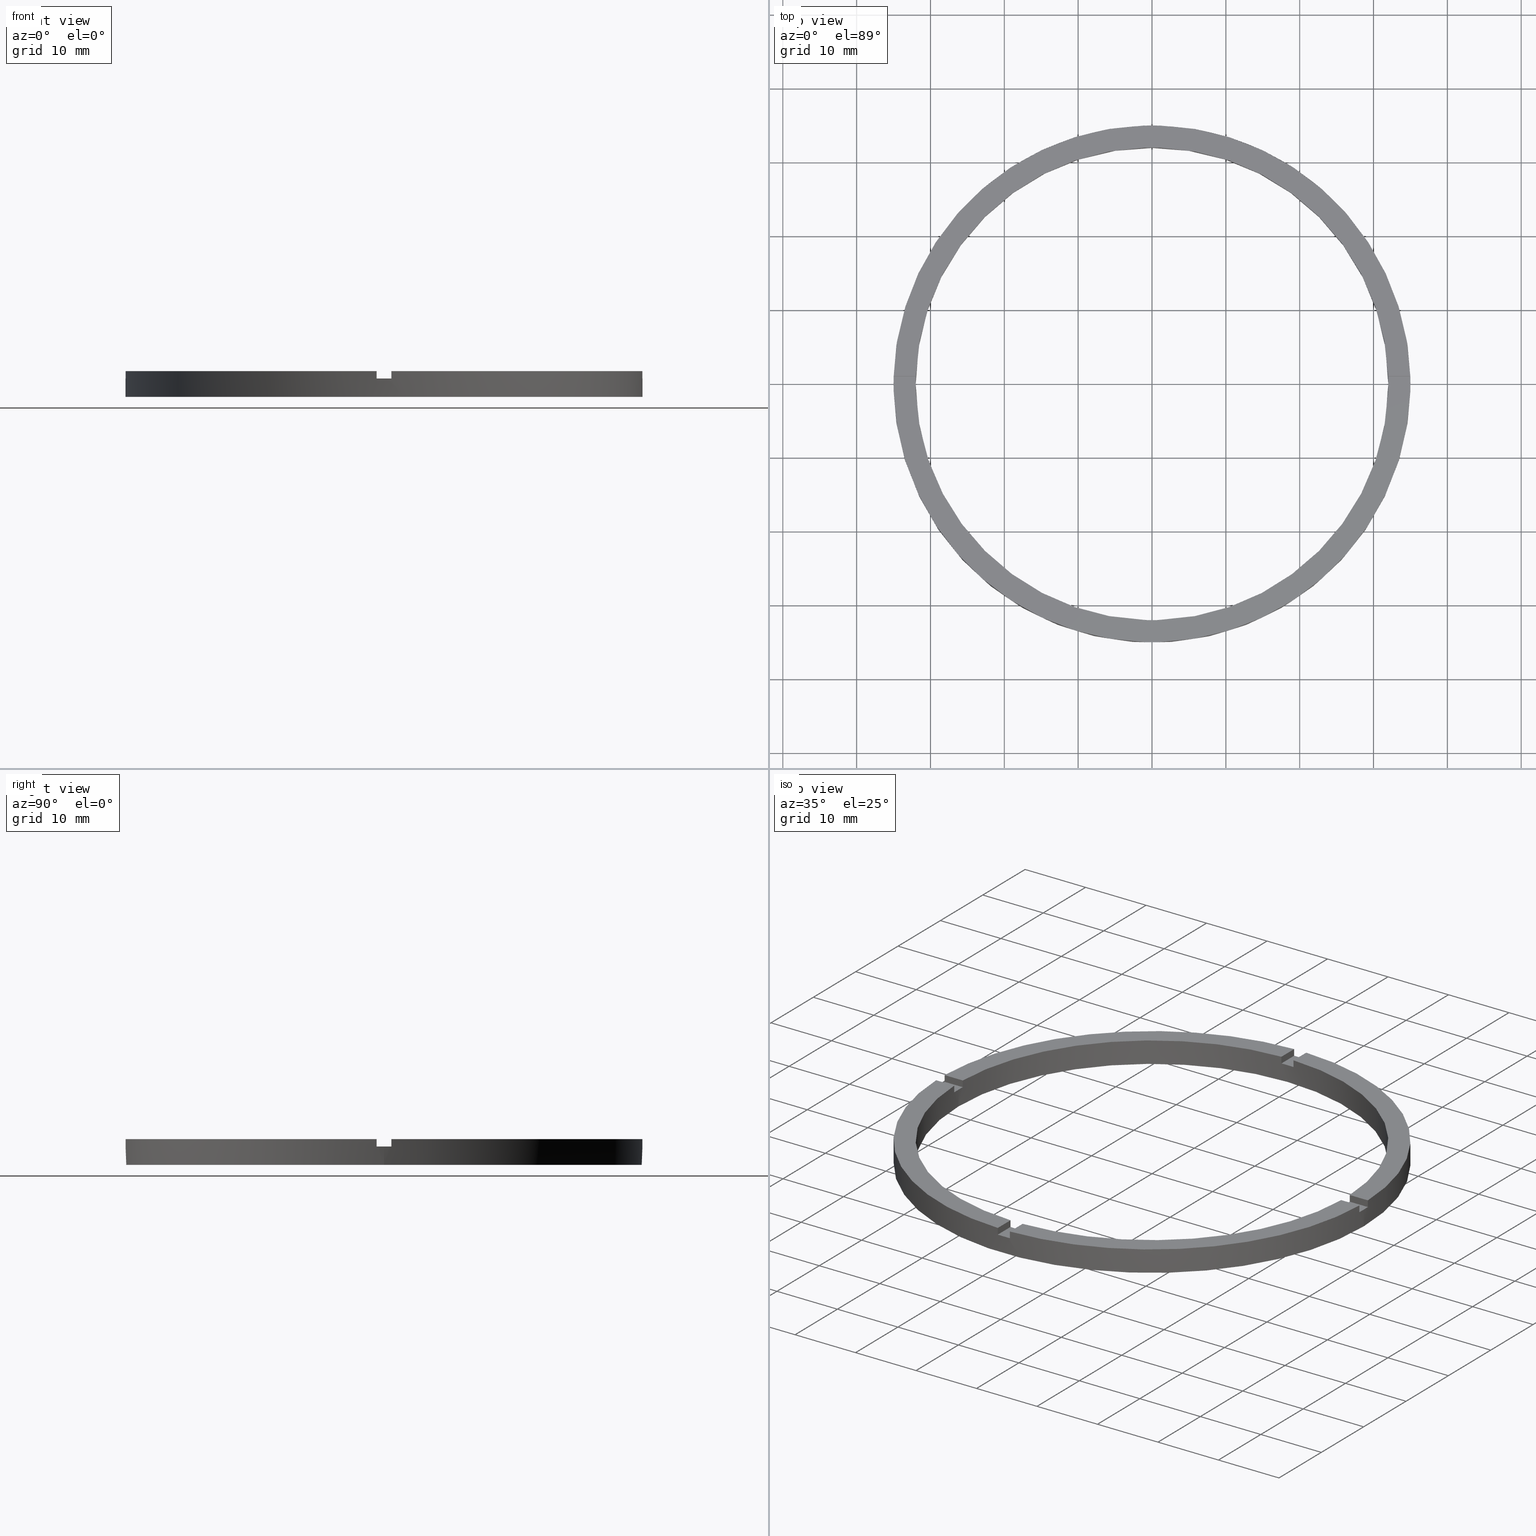
[diagram: canonical four-view strip — front | top / right | iso, engineering-drawing reading convention]
A machine part, canonical four-view strip (front | top / right | iso — engineering-drawing reading convention). The complete STEP part file that produces these views, byte-faithful:
ISO-10303-21;
HEADER;
FILE_DESCRIPTION (( 'STEP AP203' ),
    '1' );
FILE_NAME ('514145.step',
    '2024-12-26T02:41:53',
    ( 'MSI' ),
    ( '' ),
    'SwSTEP 2.0',
    'SolidWorks 2020',
    '' );
FILE_SCHEMA (( 'CONFIG_CONTROL_DESIGN' ));
ENDSEC;

DATA;
#1 = EDGE_LOOP ( 'NONE', ( #15, #634, #408, #542 ) ) ;
#2 = CARTESIAN_POINT ( 'NONE',  ( 0.9999999999999751310, 25.00000000000000711, 2.500000000000000000 ) ) ;
#3 = EDGE_CURVE ( 'NONE', #108, #667, #706, .T. ) ;
#4 = ORIENTED_EDGE ( 'NONE', *, *, #701, .T. ) ;
#5 = ORIENTED_EDGE ( 'NONE', *, *, #680, .T. ) ;
#6 = LINE ( 'NONE', #776, #533 ) ;
#7 = EDGE_LOOP ( 'NONE', ( #168, #270, #66, #73 ) ) ;
#8 = DIRECTION ( 'NONE',  ( 1.000000000000000000, 0.000000000000000000, 0.000000000000000000 ) ) ;
#9 = ORIENTED_EDGE ( 'NONE', *, *, #312, .T. ) ;
#10 = VERTEX_POINT ( 'NONE', #442 ) ;
#11 = CC_DESIGN_DATE_AND_TIME_ASSIGNMENT ( #223, #632, ( #474 ) ) ;
#12 = ORIENTED_EDGE ( 'NONE', *, *, #178, .T. ) ;
#13 = DIRECTION ( 'NONE',  ( 1.000000000000000000, 0.000000000000000000, -0.000000000000000000 ) ) ;
#14 = LINE ( 'NONE', #297, #308 ) ;
#15 = ORIENTED_EDGE ( 'NONE', *, *, #178, .F. ) ;
#16 = EDGE_CURVE ( 'NONE', #268, #338, #696, .T. ) ;
#17 = CARTESIAN_POINT ( 'NONE',  ( 34.98571136907181511, 0.9999999999998421263, 3.500000000000000000 ) ) ;
#18 = ADVANCED_FACE ( 'NONE', ( #187 ), #773, .F. ) ;
#19 = ORIENTED_EDGE ( 'NONE', *, *, #525, .T. ) ;
#20 = ORIENTED_EDGE ( 'NONE', *, *, #281, .T. ) ;
#21 = DIRECTION ( 'NONE',  ( 1.000000000000000000, 0.000000000000000000, 0.000000000000000000 ) ) ;
#22 = FACE_OUTER_BOUND ( 'NONE', #140, .T. ) ;
#23 = LINE ( 'NONE', #144, #522 ) ;
#24 = ADVANCED_FACE ( 'NONE', ( #430 ), #33, .T. ) ;
#25 = AXIS2_PLACEMENT_3D ( 'NONE', #763, #571, #75 ) ;
#26 = CARTESIAN_POINT ( 'NONE',  ( 34.98571136907180090, -1.000000000000157874, 2.500000000000000000 ) ) ;
#27 = EDGE_CURVE ( 'NONE', #182, #147, #191, .T. ) ;
#28 = VECTOR ( 'NONE', #254, 1000.000000000000000 ) ;
#29 = CARTESIAN_POINT ( 'NONE',  ( -31.98437118343894880, -1.000000000000026201, 3.500000000000000000 ) ) ;
#30 = DIRECTION ( 'NONE',  ( 0.000000000000000000, 0.000000000000000000, 1.000000000000000000 ) ) ;
#31 = APPROVAL ( #285, 'δָ��' ) ;
#32 = AXIS2_PLACEMENT_3D ( 'NONE', #642, #211, #220 ) ;
#33 = PLANE ( 'NONE',  #779 ) ;
#34 = DIRECTION ( 'NONE',  ( 0.000000000000000000, 0.000000000000000000, 1.000000000000000000 ) ) ;
#35 = APPLICATION_CONTEXT ( 'configuration controlled 3d designs of mechanical parts and assemblies' ) ;
#36 = AXIS2_PLACEMENT_3D ( 'NONE', #46, #341, #299 ) ;
#37 = CARTESIAN_POINT ( 'NONE',  ( -31.98437118343894880, 0.9999999999999737987, 2.500000000000000000 ) ) ;
#38 = DIRECTION ( 'NONE',  ( -1.000000000000000000, 0.000000000000000000, 0.000000000000000000 ) ) ;
#39 = CIRCLE ( 'NONE', #404, 35.00000000000000711 ) ;
#40 = DIRECTION ( 'NONE',  ( 0.000000000000000000, 0.000000000000000000, 1.000000000000000000 ) ) ;
#41 = AXIS2_PLACEMENT_3D ( 'NONE', #500, #596, #173 ) ;
#42 = CARTESIAN_POINT ( 'NONE',  ( 0.9999999999998391287, -31.98437118343895591, 3.500000000000000000 ) ) ;
#43 = CARTESIAN_POINT ( 'NONE',  ( -1.000000000000024869, 25.00000000000000711, 2.500000000000000000 ) ) ;
#44 = DIRECTION ( 'NONE',  ( -0.000000000000000000, -0.000000000000000000, -1.000000000000000000 ) ) ;
#45 = DIRECTION ( 'NONE',  ( 1.000000000000000000, 0.000000000000000000, 0.000000000000000000 ) ) ;
#46 = CARTESIAN_POINT ( 'NONE',  ( 0.000000000000000000, 0.000000000000000000, 3.500000000000000000 ) ) ;
#47 = AXIS2_PLACEMENT_3D ( 'NONE', #420, #564, #21 ) ;
#48 = DIRECTION ( 'NONE',  ( 0.000000000000000000, 0.000000000000000000, 1.000000000000000000 ) ) ;
#49 = EDGE_CURVE ( 'NONE', #268, #409, #426, .T. ) ;
#50 = CARTESIAN_POINT ( 'NONE',  ( 0.000000000000000000, 0.000000000000000000, 2.500000000000000000 ) ) ;
#51 = DIRECTION ( 'NONE',  ( 1.000000000000000000, 6.505213034913025371E-17, 0.000000000000000000 ) ) ;
#52 = DIRECTION ( 'NONE',  ( 0.000000000000000000, 0.000000000000000000, 1.000000000000000000 ) ) ;
#53 = CARTESIAN_POINT ( 'NONE',  ( 35.00000000000000711, 4.286263797015737285E-15, 2.500000000000000000 ) ) ;
#54 = CARTESIAN_POINT ( 'NONE',  ( 0.000000000000000000, 0.000000000000000000, 3.500000000000000000 ) ) ;
#55 = CC_DESIGN_PERSON_AND_ORGANIZATION_ASSIGNMENT ( #738, #778, ( #607 ) ) ;
#56 = DIRECTION ( 'NONE',  ( 0.000000000000000000, -0.000000000000000000, 1.000000000000000000 ) ) ;
#57 = EDGE_CURVE ( 'NONE', #703, #676, #690, .T. ) ;
#58 = CARTESIAN_POINT ( 'NONE',  ( 0.000000000000000000, 0.000000000000000000, 0.000000000000000000 ) ) ;
#59 = ADVANCED_FACE ( 'NONE', ( #450 ), #586, .T. ) ;
#60 = DIRECTION ( 'NONE',  ( 0.000000000000000000, 0.000000000000000000, 1.000000000000000000 ) ) ;
#61 = EDGE_CURVE ( 'NONE', #449, #409, #166, .T. ) ;
#62 = CC_DESIGN_APPROVAL ( #31, ( #606 ) ) ;
#63 = AXIS2_PLACEMENT_3D ( 'NONE', #96, #163, #496 ) ;
#64 = DIRECTION ( 'NONE',  ( -0.000000000000000000, 0.000000000000000000, 1.000000000000000000 ) ) ;
#65 = EDGE_CURVE ( 'NONE', #453, #95, #700, .T. ) ;
#66 = ORIENTED_EDGE ( 'NONE', *, *, #61, .T. ) ;
#67 = CARTESIAN_POINT ( 'NONE',  ( -1.000000000000024869, 25.00000000000000711, 2.500000000000000000 ) ) ;
#68 = ORIENTED_EDGE ( 'NONE', *, *, #197, .F. ) ;
#69 = DIRECTION ( 'NONE',  ( 0.000000000000000000, 0.000000000000000000, 1.000000000000000000 ) ) ;
#70 = AXIS2_PLACEMENT_3D ( 'NONE', #345, #662, #271 ) ;
#71 = ORIENTED_EDGE ( 'NONE', *, *, #562, .T. ) ;
#72 = DIRECTION ( 'NONE',  ( 0.000000000000000000, 0.000000000000000000, 1.000000000000000000 ) ) ;
#73 = ORIENTED_EDGE ( 'NONE', *, *, #49, .F. ) ;
#74 = ORIENTED_EDGE ( 'NONE', *, *, #321, .F. ) ;
#75 = DIRECTION ( 'NONE',  ( 1.000000000000000000, 0.000000000000000000, 0.000000000000000000 ) ) ;
#76 = ORIENTED_EDGE ( 'NONE', *, *, #234, .F. ) ;
#77 = DIRECTION ( 'NONE',  ( 6.505213034913025371E-17, -1.000000000000000000, 0.000000000000000000 ) ) ;
#78 = ORIENTED_EDGE ( 'NONE', *, *, #386, .F. ) ;
#79 = ORIENTED_EDGE ( 'NONE', *, *, #415, .F. ) ;
#80 = CARTESIAN_POINT ( 'NONE',  ( -1.000000000000024869, 34.98571136907180801, 3.500000000000000000 ) ) ;
#81 = ORIENTED_EDGE ( 'NONE', *, *, #363, .T. ) ;
#82 = DIRECTION ( 'NONE',  ( -0.000000000000000000, -0.000000000000000000, -1.000000000000000000 ) ) ;
#83 = ORIENTED_EDGE ( 'NONE', *, *, #680, .F. ) ;
#84 = ORIENTED_EDGE ( 'NONE', *, *, #494, .T. ) ;
#85 = VERTEX_POINT ( 'NONE', #276 ) ;
#86 = ORIENTED_EDGE ( 'NONE', *, *, #701, .F. ) ;
#87 = EDGE_LOOP ( 'NONE', ( #172, #686, #695, #176 ) ) ;
#88 = ORIENTED_EDGE ( 'NONE', *, *, #16, .F. ) ;
#89 = VERTEX_POINT ( 'NONE', #519 ) ;
#90 = ORIENTED_EDGE ( 'NONE', *, *, #197, .T. ) ;
#91 = DIRECTION ( 'NONE',  ( 0.000000000000000000, 0.000000000000000000, 1.000000000000000000 ) ) ;
#92 = ORIENTED_EDGE ( 'NONE', *, *, #325, .T. ) ;
#93 = ORIENTED_EDGE ( 'NONE', *, *, #567, .T. ) ;
#94 = CARTESIAN_POINT ( 'NONE',  ( -1.000000000000160538, -34.98571136907180090, 3.500000000000000000 ) ) ;
#95 = VERTEX_POINT ( 'NONE', #284 ) ;
#96 = CARTESIAN_POINT ( 'NONE',  ( 0.000000000000000000, 0.000000000000000000, 0.000000000000000000 ) ) ;
#97 = CARTESIAN_POINT ( 'NONE',  ( -25.00000000000019540, -1.000000000000024869, 3.500000000000000000 ) ) ;
#98 = DIRECTION ( 'NONE',  ( 1.000000000000000000, 0.000000000000000000, 0.000000000000000000 ) ) ;
#99 = EDGE_CURVE ( 'NONE', #147, #139, #169, .T. ) ;
#100 = ADVANCED_FACE ( 'NONE', ( #417 ), #463, .T. ) ;
#101 = CARTESIAN_POINT ( 'NONE',  ( 32.00000000000000000, 3.918869757271530263E-15, 0.000000000000000000 ) ) ;
#102 = ORIENTED_EDGE ( 'NONE', *, *, #746, .F. ) ;
#103 = ORIENTED_EDGE ( 'NONE', *, *, #61, .F. ) ;
#104 = CARTESIAN_POINT ( 'NONE',  ( 0.000000000000000000, 0.000000000000000000, 2.500000000000000000 ) ) ;
#105 = ORIENTED_EDGE ( 'NONE', *, *, #655, .F. ) ;
#106 = CARTESIAN_POINT ( 'NONE',  ( 32.00000000000000000, 3.918869757271530263E-15, 2.500000000000000000 ) ) ;
#107 = AXIS2_PLACEMENT_3D ( 'NONE', #595, #602, #724 ) ;
#108 = VERTEX_POINT ( 'NONE', #37 ) ;
#109 = EDGE_CURVE ( 'NONE', #545, #282, #199, .T. ) ;
#110 = CARTESIAN_POINT ( 'NONE',  ( -34.98571136907180801, 0.9999999999999733546, 2.500000000000000000 ) ) ;
#111 = ADVANCED_FACE ( 'NONE', ( #208 ), #459, .F. ) ;
#112 = DIRECTION ( 'NONE',  ( -1.000000000000000000, -6.505213034913025371E-17, -0.000000000000000000 ) ) ;
#113 = AXIS2_PLACEMENT_3D ( 'NONE', #751, #499, #365 ) ;
#114 = DIRECTION ( 'NONE',  ( 1.000000000000000000, 0.000000000000000000, 0.000000000000000000 ) ) ;
#115 = CARTESIAN_POINT ( 'NONE',  ( 0.000000000000000000, 0.000000000000000000, 2.500000000000000000 ) ) ;
#116 = CC_DESIGN_PERSON_AND_ORGANIZATION_ASSIGNMENT ( #226, #549, ( #474 ) ) ;
#117 = DIRECTION ( 'NONE',  ( 0.000000000000000000, 1.000000000000000000, 0.000000000000000000 ) ) ;
#118 = VECTOR ( 'NONE', #51, 1000.000000000000000 ) ;
#119 = CARTESIAN_POINT ( 'NONE',  ( -1.000000000000160538, -34.98571136907180090, 3.500000000000000000 ) ) ;
#120 = EDGE_CURVE ( 'NONE', #135, #429, #718, .T. ) ;
#121 = LINE ( 'NONE', #691, #387 ) ;
#122 = ADVANCED_BREP_SHAPE_REPRESENTATION ( '514145', ( #757, #384 ), #521 ) ;
#123 = ORIENTED_EDGE ( 'NONE', *, *, #581, .F. ) ;
#124 = CARTESIAN_POINT ( 'NONE',  ( 0.000000000000000000, 0.000000000000000000, 2.500000000000000000 ) ) ;
#125 = APPROVAL_STATUS ( 'not_yet_approved' ) ;
#126 = ORIENTED_EDGE ( 'NONE', *, *, #626, .T. ) ;
#127 = AXIS2_PLACEMENT_3D ( 'NONE', #440, #619, #518 ) ;
#128 = DIRECTION ( 'NONE',  ( 0.000000000000000000, -0.000000000000000000, 1.000000000000000000 ) ) ;
#129 = EDGE_CURVE ( 'NONE', #10, #524, #481, .T. ) ;
#130 = LINE ( 'NONE', #236, #401 ) ;
#131 = PERSON_AND_ORGANIZATION_ROLE ( 'design_owner' ) ;
#132 = ORIENTED_EDGE ( 'NONE', *, *, #551, .F. ) ;
#133 = DIRECTION ( 'NONE',  ( 1.000000000000000000, 0.000000000000000000, 0.000000000000000000 ) ) ;
#134 = ORIENTED_EDGE ( 'NONE', *, *, #145, .T. ) ;
#135 = VERTEX_POINT ( 'NONE', #154 ) ;
#136 = VERTEX_POINT ( 'NONE', #298 ) ;
#137 = ORIENTED_EDGE ( 'NONE', *, *, #129, .T. ) ;
#138 = CARTESIAN_POINT ( 'NONE',  ( 0.9999999999999751310, 34.98571136907180801, 3.500000000000000000 ) ) ;
#139 = VERTEX_POINT ( 'NONE', #101 ) ;
#140 = EDGE_LOOP ( 'NONE', ( #455, #278, #436, #444 ) ) ;
#141 = VERTEX_POINT ( 'NONE', #777 ) ;
#142 = AXIS2_PLACEMENT_3D ( 'NONE', #302, #72, #45 ) ;
#143 = ORIENTED_EDGE ( 'NONE', *, *, #477, .T. ) ;
#144 = CARTESIAN_POINT ( 'NONE',  ( -31.98437118343894880, -1.000000000000026201, 3.500000000000000000 ) ) ;
#145 = EDGE_CURVE ( 'NONE', #429, #545, #743, .T. ) ;
#146 = CARTESIAN_POINT ( 'NONE',  ( -1.000000000000161871, -25.00000000000018829, 2.500000000000000000 ) ) ;
#147 = VERTEX_POINT ( 'NONE', #106 ) ;
#148 = ORIENTED_EDGE ( 'NONE', *, *, #3, .T. ) ;
#149 = ORIENTED_EDGE ( 'NONE', *, *, #567, .F. ) ;
#150 = ORIENTED_EDGE ( 'NONE', *, *, #756, .T. ) ;
#151 = DIRECTION ( 'NONE',  ( -0.000000000000000000, -0.000000000000000000, -1.000000000000000000 ) ) ;
#152 = EDGE_LOOP ( 'NONE', ( #280, #150, #364, #640, #618, #427, #421, #648, #682, #360, #4, #400 ) ) ;
#153 = ORIENTED_EDGE ( 'NONE', *, *, #330, .T. ) ;
#154 = CARTESIAN_POINT ( 'NONE',  ( -34.98571136907180801, -1.000000000000026645, 3.500000000000000000 ) ) ;
#155 =( LENGTH_UNIT ( ) NAMED_UNIT ( * ) SI_UNIT ( .MILLI., .METRE. ) );
#156 = VERTEX_POINT ( 'NONE', #17 ) ;
#157 = ORIENTED_EDGE ( 'NONE', *, *, #581, .T. ) ;
#158 = CC_DESIGN_PERSON_AND_ORGANIZATION_ASSIGNMENT ( #480, #221, ( #606 ) ) ;
#159 = CARTESIAN_POINT ( 'NONE',  ( 25.00000000000000000, -1.000000000000158540, 3.500000000000000000 ) ) ;
#160 = EDGE_LOOP ( 'NONE', ( #445, #692, #544, #86, #143, #403, #134, #132, #532, #349, #81, #635 ) ) ;
#161 = AXIS2_PLACEMENT_3D ( 'NONE', #553, #479, #390 ) ;
#162 = VERTEX_POINT ( 'NONE', #482 ) ;
#163 = DIRECTION ( 'NONE',  ( 0.000000000000000000, 0.000000000000000000, 1.000000000000000000 ) ) ;
#164 = CARTESIAN_POINT ( 'NONE',  ( 25.00000000000000000, -1.000000000000158540, 2.500000000000000000 ) ) ;
#165 = ORIENTED_EDGE ( 'NONE', *, *, #756, .F. ) ;
#166 = LINE ( 'NONE', #760, #438 ) ;
#167 = ORIENTED_EDGE ( 'NONE', *, *, #57, .F. ) ;
#168 = ORIENTED_EDGE ( 'NONE', *, *, #393, .F. ) ;
#169 = LINE ( 'NONE', #327, #196 ) ;
#170 = PLANE ( 'NONE',  #107 ) ;
#171 = VECTOR ( 'NONE', #212, 1000.000000000000000 ) ;
#172 = ORIENTED_EDGE ( 'NONE', *, *, #330, .F. ) ;
#173 = DIRECTION ( 'NONE',  ( 1.301042606982605074E-16, -1.000000000000000000, 0.000000000000000000 ) ) ;
#174 = EDGE_CURVE ( 'NONE', #338, #85, #216, .T. ) ;
#175 = PERSON_AND_ORGANIZATION ( #505, #441 ) ;
#176 = ORIENTED_EDGE ( 'NONE', *, *, #222, .F. ) ;
#177 = APPROVAL_PERSON_ORGANIZATION ( #183, #645, #235 ) ;
#178 = EDGE_CURVE ( 'NONE', #189, #703, #218, .T. ) ;
#179 = VERTEX_POINT ( 'NONE', #53 ) ;
#180 = CIRCLE ( 'NONE', #253, 32.00000000000000000 ) ;
#181 = CARTESIAN_POINT ( 'NONE',  ( -32.00000000000000000, 0.000000000000000000, 0.000000000000000000 ) ) ;
#182 = VERTEX_POINT ( 'NONE', #727 ) ;
#183 = PERSON_AND_ORGANIZATION ( #505, #441 ) ;
#184 = DIRECTION ( 'NONE',  ( 1.301042606982605074E-16, -1.000000000000000000, 0.000000000000000000 ) ) ;
#185 = ORIENTED_EDGE ( 'NONE', *, *, #303, .F. ) ;
#186 = VECTOR ( 'NONE', #151, 1000.000000000000000 ) ;
#187 = FACE_OUTER_BOUND ( 'NONE', #275, .T. ) ;
#188 = ADVANCED_FACE ( 'NONE', ( #765 ), #739, .T. ) ;
#189 = VERTEX_POINT ( 'NONE', #396 ) ;
#190 = VECTOR ( 'NONE', #572, 1000.000000000000000 ) ;
#191 = CIRCLE ( 'NONE', #25, 32.00000000000000000 ) ;
#192 = FACE_OUTER_BOUND ( 'NONE', #625, .T. ) ;
#193 = CARTESIAN_POINT ( 'NONE',  ( 0.000000000000000000, 0.000000000000000000, 2.500000000000000000 ) ) ;
#194 = CYLINDRICAL_SURFACE ( 'NONE', #639, 32.00000000000000000 ) ;
#195 = EDGE_CURVE ( 'NONE', #162, #631, #243, .T. ) ;
#196 = VECTOR ( 'NONE', #579, 1000.000000000000000 ) ;
#197 = EDGE_CURVE ( 'NONE', #95, #633, #766, .T. ) ;
#198 = ADVANCED_FACE ( 'NONE', ( #767 ), #391, .F. ) ;
#199 = LINE ( 'NONE', #381, #203 ) ;
#200 = CARTESIAN_POINT ( 'NONE',  ( -35.00000000000000711, 0.000000000000000000, 0.000000000000000000 ) ) ;
#201 = LINE ( 'NONE', #650, #186 ) ;
#202 = FACE_OUTER_BOUND ( 'NONE', #629, .T. ) ;
#203 = VECTOR ( 'NONE', #698, 1000.000000000000000 ) ;
#204 = CIRCLE ( 'NONE', #565, 32.00000000000000000 ) ;
#205 = DIRECTION ( 'NONE',  ( -0.000000000000000000, 0.000000000000000000, 1.000000000000000000 ) ) ;
#206 = VECTOR ( 'NONE', #258, 1000.000000000000000 ) ;
#207 = AXIS2_PLACEMENT_3D ( 'NONE', #67, #227, #372 ) ;
#208 = FACE_OUTER_BOUND ( 'NONE', #160, .T. ) ;
#209 = FACE_OUTER_BOUND ( 'NONE', #152, .T. ) ;
#210 = CALENDAR_DATE ( 2024, 26, 12 ) ;
#211 = DIRECTION ( 'NONE',  ( 0.000000000000000000, 0.000000000000000000, 1.000000000000000000 ) ) ;
#212 = DIRECTION ( 'NONE',  ( 0.000000000000000000, 0.000000000000000000, 1.000000000000000000 ) ) ;
#213 = DATE_AND_TIME ( #485, #229 ) ;
#214 = VECTOR ( 'NONE', #646, 1000.000000000000000 ) ;
#215 = APPROVAL_DATE_TIME ( #225, #645 ) ;
#216 = LINE ( 'NONE', #43, #745 ) ;
#217 = LOCAL_TIME ( 10, 41, 53.00000000000000000, #755 ) ;
#218 = LINE ( 'NONE', #146, #487 ) ;
#219 = COORDINATED_UNIVERSAL_TIME_OFFSET ( 8, 0, .AHEAD. ) ;
#220 = DIRECTION ( 'NONE',  ( 1.000000000000000000, 0.000000000000000000, 0.000000000000000000 ) ) ;
#221 = PERSON_AND_ORGANIZATION_ROLE ( 'classification_officer' ) ;
#222 = EDGE_CURVE ( 'NONE', #669, #524, #247, .T. ) ;
#223 = DATE_AND_TIME ( #210, #217 ) ;
#224 = APPROVAL_DATE_TIME ( #750, #31 ) ;
#225 = DATE_AND_TIME ( #714, #468 ) ;
#226 = PERSON_AND_ORGANIZATION ( #505, #441 ) ;
#227 = DIRECTION ( 'NONE',  ( -1.000000000000000000, 0.000000000000000000, 0.000000000000000000 ) ) ;
#228 = PERSON_AND_ORGANIZATION_ROLE ( 'design_supplier' ) ;
#229 = LOCAL_TIME ( 10, 41, 53.00000000000000000, #493 ) ;
#230 = CARTESIAN_POINT ( 'NONE',  ( 0.000000000000000000, 0.000000000000000000, 3.500000000000000000 ) ) ;
#231 = DIRECTION ( 'NONE',  ( 1.000000000000000000, 0.000000000000000000, 0.000000000000000000 ) ) ;
#232 = AXIS2_PLACEMENT_3D ( 'NONE', #124, #128, #758 ) ;
#233 = CARTESIAN_POINT ( 'NONE',  ( 0.000000000000000000, 0.000000000000000000, 2.500000000000000000 ) ) ;
#234 = EDGE_CURVE ( 'NONE', #439, #633, #251, .T. ) ;
#235 = APPROVAL_ROLE ( '' ) ;
#236 = CARTESIAN_POINT ( 'NONE',  ( 34.98571136907181511, 0.9999999999998421263, 3.500000000000000000 ) ) ;
#237 = FACE_OUTER_BOUND ( 'NONE', #679, .T. ) ;
#238 = VECTOR ( 'NONE', #48, 1000.000000000000000 ) ;
#239 = DIRECTION ( 'NONE',  ( 0.000000000000000000, 0.000000000000000000, 1.000000000000000000 ) ) ;
#240 = LINE ( 'NONE', #379, #672 ) ;
#241 = CARTESIAN_POINT ( 'NONE',  ( -25.00000000000019540, 0.9999999999999751310, 3.500000000000000000 ) ) ;
#242 = AXIS2_PLACEMENT_3D ( 'NONE', #484, #77, #556 ) ;
#243 = LINE ( 'NONE', #720, #512 ) ;
#244 = PLANE ( 'NONE',  #731 ) ;
#245 = EDGE_CURVE ( 'NONE', #613, #395, #515, .T. ) ;
#246 = DIRECTION ( 'NONE',  ( 1.000000000000000000, 0.000000000000000000, 0.000000000000000000 ) ) ;
#247 = LINE ( 'NONE', #651, #510 ) ;
#248 = DIRECTION ( 'NONE',  ( -0.000000000000000000, -0.000000000000000000, -1.000000000000000000 ) ) ;
#249 = DIRECTION ( 'NONE',  ( -0.000000000000000000, -0.000000000000000000, -1.000000000000000000 ) ) ;
#250 = DIRECTION ( 'NONE',  ( 0.000000000000000000, 0.000000000000000000, 1.000000000000000000 ) ) ;
#251 = CIRCLE ( 'NONE', #324, 35.00000000000000711 ) ;
#252 = DIRECTION ( 'NONE',  ( 0.000000000000000000, 0.000000000000000000, 1.000000000000000000 ) ) ;
#253 = AXIS2_PLACEMENT_3D ( 'NONE', #311, #352, #412 ) ;
#254 = DIRECTION ( 'NONE',  ( -1.000000000000000000, -6.505213034913025371E-17, -0.000000000000000000 ) ) ;
#255 = DIRECTION ( 'NONE',  ( 1.000000000000000000, 0.000000000000000000, 0.000000000000000000 ) ) ;
#256 = DIRECTION ( 'NONE',  ( -1.000000000000000000, 0.000000000000000000, 0.000000000000000000 ) ) ;
#257 = EDGE_CURVE ( 'NONE', #667, #162, #774, .T. ) ;
#258 = DIRECTION ( 'NONE',  ( -0.000000000000000000, -1.000000000000000000, -0.000000000000000000 ) ) ;
#259 = ORIENTED_EDGE ( 'NONE', *, *, #456, .F. ) ;
#260 = FACE_OUTER_BOUND ( 'NONE', #405, .T. ) ;
#261 = VERTEX_POINT ( 'NONE', #348 ) ;
#262 = DIRECTION ( 'NONE',  ( 1.000000000000000000, 0.000000000000000000, 0.000000000000000000 ) ) ;
#263 = ORIENTED_EDGE ( 'NONE', *, *, #363, .F. ) ;
#264 = FACE_OUTER_BOUND ( 'NONE', #7, .T. ) ;
#265 = AXIS2_PLACEMENT_3D ( 'NONE', #50, #250, #541 ) ;
#266 = VERTEX_POINT ( 'NONE', #585 ) ;
#267 = ADVANCED_FACE ( 'NONE', ( #237 ), #593, .T. ) ;
#268 = VERTEX_POINT ( 'NONE', #775 ) ;
#269 = EDGE_CURVE ( 'NONE', #141, #449, #502, .T. ) ;
#270 = ORIENTED_EDGE ( 'NONE', *, *, #269, .T. ) ;
#271 = DIRECTION ( 'NONE',  ( 1.000000000000000000, 0.000000000000000000, 0.000000000000000000 ) ) ;
#272 = ORIENTED_EDGE ( 'NONE', *, *, #663, .F. ) ;
#273 = ORIENTED_EDGE ( 'NONE', *, *, #721, .T. ) ;
#274 = ORIENTED_EDGE ( 'NONE', *, *, #477, .F. ) ;
#275 = EDGE_LOOP ( 'NONE', ( #273, #9, #367, #149 ) ) ;
#276 = CARTESIAN_POINT ( 'NONE',  ( -1.000000000000024869, 31.98437118343894880, 2.500000000000000000 ) ) ;
#277 = APPROVAL_ROLE ( '' ) ;
#278 = ORIENTED_EDGE ( 'NONE', *, *, #501, .T. ) ;
#279 = AXIS2_PLACEMENT_3D ( 'NONE', #233, #64, #114 ) ;
#280 = ORIENTED_EDGE ( 'NONE', *, *, #99, .F. ) ;
#281 = EDGE_CURVE ( 'NONE', #667, #633, #240, .T. ) ;
#282 = VERTEX_POINT ( 'NONE', #94 ) ;
#283 = CIRCLE ( 'NONE', #142, 35.00000000000000711 ) ;
#284 = CARTESIAN_POINT ( 'NONE',  ( -31.98437118343894880, 0.9999999999999737987, 3.500000000000000000 ) ) ;
#285 = APPROVAL_STATUS ( 'not_yet_approved' ) ;
#286 = LINE ( 'NONE', #339, #28 ) ;
#287 = DIRECTION ( 'NONE',  ( 0.000000000000000000, -0.000000000000000000, 1.000000000000000000 ) ) ;
#288 = SECURITY_CLASSIFICATION_LEVEL ( 'unclassified' ) ;
#289 = AXIS2_PLACEMENT_3D ( 'NONE', #115, #205, #262 ) ;
#290 = PLANE ( 'NONE',  #469 ) ;
#291 = DIRECTION ( 'NONE',  ( -1.301042606982605074E-16, 1.000000000000000000, -0.000000000000000000 ) ) ;
#292 = APPROVAL_STATUS ( 'not_yet_approved' ) ;
#293 = CARTESIAN_POINT ( 'NONE',  ( 0.9999999999998382405, -25.00000000000018829, 2.500000000000000000 ) ) ;
#294 = CC_DESIGN_PERSON_AND_ORGANIZATION_ASSIGNMENT ( #175, #131, ( #423 ) ) ;
#295 = EDGE_CURVE ( 'NONE', #266, #783, #660, .T. ) ;
#296 = DIRECTION ( 'NONE',  ( 1.000000000000000000, 0.000000000000000000, -0.000000000000000000 ) ) ;
#297 = CARTESIAN_POINT ( 'NONE',  ( 31.98437118343895591, 0.9999999999998421263, 3.500000000000000000 ) ) ;
#298 = CARTESIAN_POINT ( 'NONE',  ( 34.98571136907181511, 0.9999999999998421263, 2.500000000000000000 ) ) ;
#299 = DIRECTION ( 'NONE',  ( 1.000000000000000000, 0.000000000000000000, 0.000000000000000000 ) ) ;
#300 = CIRCLE ( 'NONE', #36, 32.00000000000000000 ) ;
#301 = AXIS2_PLACEMENT_3D ( 'NONE', #735, #498, #246 ) ;
#302 = CARTESIAN_POINT ( 'NONE',  ( 0.000000000000000000, 0.000000000000000000, 3.500000000000000000 ) ) ;
#303 = EDGE_CURVE ( 'NONE', #156, #136, #130, .T. ) ;
#304 = DIRECTION ( 'NONE',  ( -0.000000000000000000, -0.000000000000000000, -1.000000000000000000 ) ) ;
#305 = LINE ( 'NONE', #164, #574 ) ;
#306 = DIRECTION ( 'NONE',  ( 1.000000000000000000, 0.000000000000000000, 0.000000000000000000 ) ) ;
#307 = LINE ( 'NONE', #2, #566 ) ;
#308 = VECTOR ( 'NONE', #530, 1000.000000000000000 ) ;
#309 = VECTOR ( 'NONE', #589, 1000.000000000000000 ) ;
#310 = EDGE_CURVE ( 'NONE', #261, #524, #657, .T. ) ;
#311 = CARTESIAN_POINT ( 'NONE',  ( 0.000000000000000000, 0.000000000000000000, 2.500000000000000000 ) ) ;
#312 = EDGE_CURVE ( 'NONE', #453, #85, #121, .T. ) ;
#313 = DIRECTION ( 'NONE',  ( 1.000000000000000000, 0.000000000000000000, 0.000000000000000000 ) ) ;
#314 = PLANE ( 'NONE',  #688 ) ;
#315 = ADVANCED_FACE ( 'NONE', ( #664 ), #398, .F. ) ;
#316 = AXIS2_PLACEMENT_3D ( 'NONE', #658, #559, #329 ) ;
#317 = CARTESIAN_POINT ( 'NONE',  ( 0.9999999999998395728, -34.98571136907181511, 2.500000000000000000 ) ) ;
#318 = DIRECTION ( 'NONE',  ( 0.000000000000000000, 0.000000000000000000, 1.000000000000000000 ) ) ;
#319 = CARTESIAN_POINT ( 'NONE',  ( 0.000000000000000000, 0.000000000000000000, 3.500000000000000000 ) ) ;
#320 = CC_DESIGN_APPROVAL ( #645, ( #474 ) ) ;
#321 = EDGE_CURVE ( 'NONE', #179, #136, #389, .T. ) ;
#322 = LINE ( 'NONE', #80, #458 ) ;
#323 = PRODUCT_RELATED_PRODUCT_CATEGORY ( 'detail', '', ( #423 ) ) ;
#324 = AXIS2_PLACEMENT_3D ( 'NONE', #402, #490, #407 ) ;
#325 = EDGE_CURVE ( 'NONE', #10, #676, #723, .T. ) ;
#326 = CARTESIAN_POINT ( 'NONE',  ( 34.98571136907180090, -1.000000000000157874, 3.500000000000000000 ) ) ;
#327 = CARTESIAN_POINT ( 'NONE',  ( 32.00000000000000000, 3.918869757271530263E-15, 3.500000000000000000 ) ) ;
#328 = CARTESIAN_POINT ( 'NONE',  ( -25.00000000000019540, -1.000000000000024869, 2.500000000000000000 ) ) ;
#329 = DIRECTION ( 'NONE',  ( -1.000000000000000000, -6.505213034913025371E-17, 0.000000000000000000 ) ) ;
#330 = EDGE_CURVE ( 'NONE', #182, #669, #305, .T. ) ;
#331 = DIRECTION ( 'NONE',  ( 0.000000000000000000, 0.000000000000000000, 1.000000000000000000 ) ) ;
#332 = PLANE ( 'NONE',  #316 ) ;
#333 = CARTESIAN_POINT ( 'NONE',  ( 0.9999999999999751310, 31.98437118343894880, 3.500000000000000000 ) ) ;
#334 = CARTESIAN_POINT ( 'NONE',  ( 0.9999999999998382405, -25.00000000000018829, 2.500000000000000000 ) ) ;
#335 = PRODUCT_DEFINITION_SHAPE ( 'NONE', 'NONE',  #474 ) ;
#336 = DIRECTION ( 'NONE',  ( 0.000000000000000000, 0.000000000000000000, 1.000000000000000000 ) ) ;
#337 = DIRECTION ( 'NONE',  ( 0.000000000000000000, 1.000000000000000000, 0.000000000000000000 ) ) ;
#338 = VERTEX_POINT ( 'NONE', #649 ) ;
#339 = CARTESIAN_POINT ( 'NONE',  ( 25.00000000000000000, 0.9999999999998414602, 2.500000000000000000 ) ) ;
#340 = ORIENTED_EDGE ( 'NONE', *, *, #435, .T. ) ;
#341 = DIRECTION ( 'NONE',  ( 0.000000000000000000, 0.000000000000000000, 1.000000000000000000 ) ) ;
#342 = ORIENTED_EDGE ( 'NONE', *, *, #295, .T. ) ;
#343 = ORIENTED_EDGE ( 'NONE', *, *, #16, .T. ) ;
#344 = AXIS2_PLACEMENT_3D ( 'NONE', #548, #355, #591 ) ;
#345 = CARTESIAN_POINT ( 'NONE',  ( 0.000000000000000000, 0.000000000000000000, 3.500000000000000000 ) ) ;
#346 = ORIENTED_EDGE ( 'NONE', *, *, #594, .T. ) ;
#347 = ORIENTED_EDGE ( 'NONE', *, *, #626, .F. ) ;
#348 = CARTESIAN_POINT ( 'NONE',  ( 31.98437118343894170, -1.000000000000157874, 3.500000000000000000 ) ) ;
#349 = ORIENTED_EDGE ( 'NONE', *, *, #295, .F. ) ;
#350 = ADVANCED_FACE ( 'NONE', ( #575 ), #578, .T. ) ;
#351 = ORIENTED_EDGE ( 'NONE', *, *, #245, .T. ) ;
#352 = DIRECTION ( 'NONE',  ( 0.000000000000000000, 0.000000000000000000, 1.000000000000000000 ) ) ;
#353 = ORIENTED_EDGE ( 'NONE', *, *, #678, .T. ) ;
#354 = ORIENTED_EDGE ( 'NONE', *, *, #195, .T. ) ;
#355 = DIRECTION ( 'NONE',  ( -0.000000000000000000, -0.000000000000000000, -1.000000000000000000 ) ) ;
#356 = ORIENTED_EDGE ( 'NONE', *, *, #109, .F. ) ;
#357 = ORIENTED_EDGE ( 'NONE', *, *, #587, .T. ) ;
#358 = ORIENTED_EDGE ( 'NONE', *, *, #721, .F. ) ;
#359 = AXIS2_PLACEMENT_3D ( 'NONE', #54, #504, #256 ) ;
#360 = ORIENTED_EDGE ( 'NONE', *, *, #770, .T. ) ;
#361 = CARTESIAN_POINT ( 'NONE',  ( -34.98571136907180801, 0.9999999999999733546, 3.500000000000000000 ) ) ;
#362 = ORIENTED_EDGE ( 'NONE', *, *, #614, .T. ) ;
#363 = EDGE_CURVE ( 'NONE', #266, #261, #300, .T. ) ;
#364 = ORIENTED_EDGE ( 'NONE', *, *, #562, .F. ) ;
#365 = DIRECTION ( 'NONE',  ( -1.000000000000000000, -1.951563910473907735E-16, 0.000000000000000000 ) ) ;
#366 = VERTEX_POINT ( 'NONE', #466 ) ;
#367 = ORIENTED_EDGE ( 'NONE', *, *, #174, .F. ) ;
#368 = AXIS2_PLACEMENT_3D ( 'NONE', #769, #388, #98 ) ;
#369 = ORIENTED_EDGE ( 'NONE', *, *, #494, .F. ) ;
#370 = ORIENTED_EDGE ( 'NONE', *, *, #49, .T. ) ;
#371 = ORIENTED_EDGE ( 'NONE', *, *, #608, .T. ) ;
#372 = DIRECTION ( 'NONE',  ( 0.000000000000000000, 0.000000000000000000, 1.000000000000000000 ) ) ;
#373 = APPROVAL_ROLE ( '' ) ;
#374 = EDGE_LOOP ( 'NONE', ( #353, #71, #259, #185 ) ) ;
#375 = ORIENTED_EDGE ( 'NONE', *, *, #746, .T. ) ;
#376 = EDGE_CURVE ( 'NONE', #182, #261, #570, .T. ) ;
#377 = UNCERTAINTY_MEASURE_WITH_UNIT (LENGTH_MEASURE( 1.000000000000000082E-05 ), #155, 'distance_accuracy_value', 'NONE');
#378 = DIRECTION ( 'NONE',  ( -1.000000000000000000, -1.951563910473907735E-16, 0.000000000000000000 ) ) ;
#379 = CARTESIAN_POINT ( 'NONE',  ( -34.98571136907180801, 0.9999999999999733546, 3.500000000000000000 ) ) ;
#380 = DIRECTION ( 'NONE',  ( -0.000000000000000000, -0.000000000000000000, -1.000000000000000000 ) ) ;
#381 = CARTESIAN_POINT ( 'NONE',  ( -1.000000000000161871, -25.00000000000018829, 3.500000000000000000 ) ) ;
#382 = APPLICATION_CONTEXT ( 'configuration controlled 3d designs of mechanical parts and assemblies' ) ;
#383 = VECTOR ( 'NONE', #44, 1000.000000000000000 ) ;
#384 = AXIS2_PLACEMENT_3D ( 'NONE', #457, #91, #520 ) ;
#385 = CARTESIAN_POINT ( 'NONE',  ( -31.98437118343894880, -1.000000000000026201, 2.500000000000000000 ) ) ;
#386 = EDGE_CURVE ( 'NONE', #162, #613, #39, .T. ) ;
#387 = VECTOR ( 'NONE', #527, 1000.000000000000000 ) ;
#388 = DIRECTION ( 'NONE',  ( 0.000000000000000000, 0.000000000000000000, 1.000000000000000000 ) ) ;
#389 = CIRCLE ( 'NONE', #368, 35.00000000000000711 ) ;
#390 = DIRECTION ( 'NONE',  ( 0.000000000000000000, 0.000000000000000000, -1.000000000000000000 ) ) ;
#391 = PLANE ( 'NONE',  #41 ) ;
#392 = AXIS2_PLACEMENT_3D ( 'NONE', #702, #331, #296 ) ;
#393 = EDGE_CURVE ( 'NONE', #141, #268, #307, .T. ) ;
#394 = CARTESIAN_POINT ( 'NONE',  ( 0.9999999999998382405, -25.00000000000018829, 3.500000000000000000 ) ) ;
#395 = VERTEX_POINT ( 'NONE', #385 ) ;
#396 = CARTESIAN_POINT ( 'NONE',  ( -1.000000000000160982, -31.98437118343894170, 2.500000000000000000 ) ) ;
#397 = EDGE_LOOP ( 'NONE', ( #537, #419, #351, #274, #627, #148 ) ) ;
#398 = PLANE ( 'NONE',  #242 ) ;
#399 = PLANE ( 'NONE',  #63 ) ;
#400 = ORIENTED_EDGE ( 'NONE', *, *, #587, .F. ) ;
#401 = VECTOR ( 'NONE', #536, 1000.000000000000000 ) ;
#402 = CARTESIAN_POINT ( 'NONE',  ( 0.000000000000000000, 0.000000000000000000, 3.500000000000000000 ) ) ;
#403 = ORIENTED_EDGE ( 'NONE', *, *, #501, .F. ) ;
#404 = AXIS2_PLACEMENT_3D ( 'NONE', #598, #69, #133 ) ;
#405 = EDGE_LOOP ( 'NONE', ( #105, #347 ) ) ;
#406 = ORIENTED_EDGE ( 'NONE', *, *, #655, .T. ) ;
#407 = DIRECTION ( 'NONE',  ( 1.000000000000000000, 0.000000000000000000, 0.000000000000000000 ) ) ;
#408 = ORIENTED_EDGE ( 'NONE', *, *, #109, .T. ) ;
#409 = VERTEX_POINT ( 'NONE', #780 ) ;
#410 = ORIENTED_EDGE ( 'NONE', *, *, #145, .F. ) ;
#411 = ORIENTED_EDGE ( 'NONE', *, *, #393, .T. ) ;
#412 = DIRECTION ( 'NONE',  ( 1.000000000000000000, 0.000000000000000000, 0.000000000000000000 ) ) ;
#413 = EDGE_LOOP ( 'NONE', ( #5, #547, #447, #165, #526, #153 ) ) ;
#414 = EDGE_LOOP ( 'NONE', ( #356, #410, #677, #375 ) ) ;
#415 = EDGE_CURVE ( 'NONE', #715, #449, #555, .T. ) ;
#416 = EDGE_LOOP ( 'NONE', ( #340, #357 ) ) ;
#417 = FACE_OUTER_BOUND ( 'NONE', #414, .T. ) ;
#418 = ORIENTED_EDGE ( 'NONE', *, *, #310, .F. ) ;
#419 = ORIENTED_EDGE ( 'NONE', *, *, #386, .T. ) ;
#420 = CARTESIAN_POINT ( 'NONE',  ( 0.000000000000000000, 0.000000000000000000, 2.500000000000000000 ) ) ;
#421 = ORIENTED_EDGE ( 'NONE', *, *, #312, .F. ) ;
#422 = ORIENTED_EDGE ( 'NONE', *, *, #325, .F. ) ;
#423 = PRODUCT ( '514145', '514145', '', ( #699 ) ) ;
#424 = ORIENTED_EDGE ( 'NONE', *, *, #129, .F. ) ;
#425 = ADVANCED_FACE ( 'NONE', ( #22 ), #290, .F. ) ;
#426 = LINE ( 'NONE', #138, #446 ) ;
#427 = ORIENTED_EDGE ( 'NONE', *, *, #663, .T. ) ;
#428 = AXIS2_PLACEMENT_3D ( 'NONE', #104, #624, #509 ) ;
#429 = VERTEX_POINT ( 'NONE', #29 ) ;
#430 = FACE_OUTER_BOUND ( 'NONE', #434, .T. ) ;
#431 = DIRECTION ( 'NONE',  ( 1.000000000000000000, 0.000000000000000000, 0.000000000000000000 ) ) ;
#432 = ORIENTED_EDGE ( 'NONE', *, *, #733, .T. ) ;
#433 = VECTOR ( 'NONE', #112, 1000.000000000000000 ) ;
#434 = EDGE_LOOP ( 'NONE', ( #103, #79, #528, #84 ) ) ;
#435 = EDGE_CURVE ( 'NONE', #671, #139, #557, .T. ) ;
#436 = ORIENTED_EDGE ( 'NONE', *, *, #245, .F. ) ;
#437 = ORIENTED_EDGE ( 'NONE', *, *, #195, .F. ) ;
#438 = VECTOR ( 'NONE', #117, 1000.000000000000000 ) ;
#439 = VERTEX_POINT ( 'NONE', #681 ) ;
#440 = CARTESIAN_POINT ( 'NONE',  ( 0.000000000000000000, 0.000000000000000000, 0.000000000000000000 ) ) ;
#441 = ORGANIZATION ( 'δָ��', 'δָ��', '' ) ;
#442 = CARTESIAN_POINT ( 'NONE',  ( 0.9999999999998395728, -34.98571136907181511, 3.500000000000000000 ) ) ;
#443 = CARTESIAN_POINT ( 'NONE',  ( 0.000000000000000000, 0.000000000000000000, 0.000000000000000000 ) ) ;
#444 = ORIENTED_EDGE ( 'NONE', *, *, #614, .F. ) ;
#445 = ORIENTED_EDGE ( 'NONE', *, *, #27, .T. ) ;
#446 = VECTOR ( 'NONE', #60, 1000.000000000000000 ) ;
#447 = ORIENTED_EDGE ( 'NONE', *, *, #456, .T. ) ;
#448 = LINE ( 'NONE', #394, #725 ) ;
#449 = VERTEX_POINT ( 'NONE', #636 ) ;
#450 = FACE_OUTER_BOUND ( 'NONE', #630, .T. ) ;
#451 = DIRECTION ( 'NONE',  ( 1.951563910473907735E-16, -1.000000000000000000, 0.000000000000000000 ) ) ;
#452 = AXIS2_PLACEMENT_3D ( 'NONE', #523, #638, #689 ) ;
#453 = VERTEX_POINT ( 'NONE', #716 ) ;
#454 = COORDINATED_UNIVERSAL_TIME_OFFSET ( 8, 0, .AHEAD. ) ;
#455 = ORIENTED_EDGE ( 'NONE', *, *, #120, .T. ) ;
#456 = EDGE_CURVE ( 'NONE', #136, #531, #286, .T. ) ;
#457 = CARTESIAN_POINT ( 'NONE',  ( 0.000000000000000000, 0.000000000000000000, 0.000000000000000000 ) ) ;
#458 = VECTOR ( 'NONE', #249, 1000.000000000000000 ) ;
#459 = CYLINDRICAL_SURFACE ( 'NONE', #344, 32.00000000000000000 ) ;
#460 = EDGE_LOOP ( 'NONE', ( #157, #342, #683, #422 ) ) ;
#461 = LINE ( 'NONE', #517, #190 ) ;
#462 = CIRCLE ( 'NONE', #561, 32.00000000000000000 ) ;
#463 = PLANE ( 'NONE',  #452 ) ;
#464 = CYLINDRICAL_SURFACE ( 'NONE', #359, 35.00000000000000711 ) ;
#465 = CC_DESIGN_APPROVAL ( #535, ( #607 ) ) ;
#466 = CARTESIAN_POINT ( 'NONE',  ( 35.00000000000000711, 4.286263797015737285E-15, 0.000000000000000000 ) ) ;
#467 = FACE_OUTER_BOUND ( 'NONE', #460, .T. ) ;
#468 = LOCAL_TIME ( 10, 41, 53.00000000000000000, #454 ) ;
#469 = AXIS2_PLACEMENT_3D ( 'NONE', #328, #451, #582 ) ;
#470 = CARTESIAN_POINT ( 'NONE',  ( 0.000000000000000000, 0.000000000000000000, 2.500000000000000000 ) ) ;
#471 = CIRCLE ( 'NONE', #428, 32.00000000000000000 ) ;
#472 = CARTESIAN_POINT ( 'NONE',  ( 0.000000000000000000, 0.000000000000000000, 3.500000000000000000 ) ) ;
#473 = CIRCLE ( 'NONE', #47, 32.00000000000000000 ) ;
#474 = PRODUCT_DEFINITION ( 'δ֪', '', #607, #781 ) ;
#475 = CARTESIAN_POINT ( 'NONE',  ( 0.9999999999998395728, -34.98571136907181511, 3.500000000000000000 ) ) ;
#476 = VECTOR ( 'NONE', #291, 1000.000000000000000 ) ;
#477 = EDGE_CURVE ( 'NONE', #89, #395, #558, .T. ) ;
#478 = PERSON_AND_ORGANIZATION ( #505, #441 ) ;
#479 = DIRECTION ( 'NONE',  ( 1.000000000000000000, -0.000000000000000000, 0.000000000000000000 ) ) ;
#480 = PERSON_AND_ORGANIZATION ( #505, #441 ) ;
#481 = CIRCLE ( 'NONE', #612, 35.00000000000000711 ) ;
#482 = CARTESIAN_POINT ( 'NONE',  ( -35.00000000000000711, 0.000000000000000000, 2.500000000000000000 ) ) ;
#483 = LOCAL_TIME ( 10, 41, 53.00000000000000000, #741 ) ;
#484 = CARTESIAN_POINT ( 'NONE',  ( 25.00000000000000000, -1.000000000000158540, 2.500000000000000000 ) ) ;
#485 = CALENDAR_DATE ( 2024, 26, 12 ) ;
#486 = LOCAL_TIME ( 10, 41, 53.00000000000000000, #219 ) ;
#487 = VECTOR ( 'NONE', #184, 1000.000000000000000 ) ;
#488 = DIRECTION ( 'NONE',  ( -1.301042606982605074E-16, 1.000000000000000000, -0.000000000000000000 ) ) ;
#489 = CALENDAR_DATE ( 2024, 26, 12 ) ;
#490 = DIRECTION ( 'NONE',  ( 0.000000000000000000, 0.000000000000000000, 1.000000000000000000 ) ) ;
#491 = SHAPE_DEFINITION_REPRESENTATION ( #335, #122 ) ;
#492 = DIRECTION ( 'NONE',  ( 1.000000000000000000, 0.000000000000000000, 0.000000000000000000 ) ) ;
#493 = COORDINATED_UNIVERSAL_TIME_OFFSET ( 8, 0, .AHEAD. ) ;
#494 = EDGE_CURVE ( 'NONE', #156, #409, #283, .T. ) ;
#495 = PERSON_AND_ORGANIZATION ( #505, #441 ) ;
#496 = DIRECTION ( 'NONE',  ( 1.000000000000000000, 0.000000000000000000, -0.000000000000000000 ) ) ;
#497 = ADVANCED_FACE ( 'NONE', ( #552 ), #170, .T. ) ;
#498 = DIRECTION ( 'NONE',  ( 0.000000000000000000, 0.000000000000000000, 1.000000000000000000 ) ) ;
#499 = DIRECTION ( 'NONE',  ( -1.951563910473907735E-16, 1.000000000000000000, 0.000000000000000000 ) ) ;
#500 = CARTESIAN_POINT ( 'NONE',  ( -1.000000000000161871, -25.00000000000018829, 2.500000000000000000 ) ) ;
#501 = EDGE_CURVE ( 'NONE', #429, #395, #23, .T. ) ;
#502 = LINE ( 'NONE', #333, #238 ) ;
#503 = ADVANCED_FACE ( 'NONE', ( #260, #529 ), #399, .F. ) ;
#504 = DIRECTION ( 'NONE',  ( -0.000000000000000000, -0.000000000000000000, -1.000000000000000000 ) ) ;
#505 = PERSON ( 'δָ��', 'δָ��', 'δָ��', ('δָ��'), ('δָ��'), ('δָ��') ) ;
#506 = ADVANCED_FACE ( 'NONE', ( #264 ), #590, .F. ) ;
#507 = CC_DESIGN_PERSON_AND_ORGANIZATION_ASSIGNMENT ( #495, #228, ( #607 ) ) ;
#508 = VECTOR ( 'NONE', #656, 1000.000000000000000 ) ;
#509 = DIRECTION ( 'NONE',  ( 1.000000000000000000, 0.000000000000000000, 0.000000000000000000 ) ) ;
#510 = VECTOR ( 'NONE', #336, 1000.000000000000000 ) ;
#511 = AXIS2_PLACEMENT_3D ( 'NONE', #230, #252, #492 ) ;
#512 = VECTOR ( 'NONE', #82, 1000.000000000000000 ) ;
#513 = CARTESIAN_POINT ( 'NONE',  ( 0.000000000000000000, 0.000000000000000000, 3.500000000000000000 ) ) ;
#514 = CARTESIAN_POINT ( 'NONE',  ( -32.00000000000000000, 0.000000000000000000, 3.500000000000000000 ) ) ;
#515 = LINE ( 'NONE', #560, #772 ) ;
#516 = AXIS2_PLACEMENT_3D ( 'NONE', #472, #304, #38 ) ;
#517 = CARTESIAN_POINT ( 'NONE',  ( -34.98571136907180801, -1.000000000000026645, 3.500000000000000000 ) ) ;
#518 = DIRECTION ( 'NONE',  ( 1.000000000000000000, 0.000000000000000000, 0.000000000000000000 ) ) ;
#519 = CARTESIAN_POINT ( 'NONE',  ( -32.00000000000000000, 0.000000000000000000, 2.500000000000000000 ) ) ;
#520 = DIRECTION ( 'NONE',  ( 1.000000000000000000, 0.000000000000000000, 0.000000000000000000 ) ) ;
#521 =( GEOMETRIC_REPRESENTATION_CONTEXT ( 3 ) GLOBAL_UNCERTAINTY_ASSIGNED_CONTEXT ( ( #377 ) ) GLOBAL_UNIT_ASSIGNED_CONTEXT ( ( #155, #580, #588 ) ) REPRESENTATION_CONTEXT ( 'NONE', 'WORKASPACE' ) );
#522 = VECTOR ( 'NONE', #707, 1000.000000000000000 ) ;
#523 = CARTESIAN_POINT ( 'NONE',  ( 0.000000000000000000, 0.000000000000000000, 3.500000000000000000 ) ) ;
#524 = VERTEX_POINT ( 'NONE', #326 ) ;
#525 = EDGE_CURVE ( 'NONE', #108, #95, #6, .T. ) ;
#526 = ORIENTED_EDGE ( 'NONE', *, *, #27, .F. ) ;
#527 = DIRECTION ( 'NONE',  ( -0.000000000000000000, -0.000000000000000000, -1.000000000000000000 ) ) ;
#528 = ORIENTED_EDGE ( 'NONE', *, *, #678, .F. ) ;
#529 = FACE_BOUND ( 'NONE', #416, .T. ) ;
#530 = DIRECTION ( 'NONE',  ( -0.000000000000000000, -0.000000000000000000, -1.000000000000000000 ) ) ;
#531 = VERTEX_POINT ( 'NONE', #732 ) ;
#532 = ORIENTED_EDGE ( 'NONE', *, *, #628, .T. ) ;
#533 = VECTOR ( 'NONE', #239, 1000.000000000000000 ) ;
#534 = ORIENTED_EDGE ( 'NONE', *, *, #3, .F. ) ;
#535 = APPROVAL ( #292, 'δָ��' ) ;
#536 = DIRECTION ( 'NONE',  ( -0.000000000000000000, -0.000000000000000000, -1.000000000000000000 ) ) ;
#537 = ORIENTED_EDGE ( 'NONE', *, *, #257, .T. ) ;
#538 = LINE ( 'NONE', #546, #543 ) ;
#539 = AXIS2_PLACEMENT_3D ( 'NONE', #470, #782, #8 ) ;
#540 = ORIENTED_EDGE ( 'NONE', *, *, #174, .T. ) ;
#541 = DIRECTION ( 'NONE',  ( 1.000000000000000000, 0.000000000000000000, -0.000000000000000000 ) ) ;
#542 = ORIENTED_EDGE ( 'NONE', *, *, #733, .F. ) ;
#543 = VECTOR ( 'NONE', #52, 1000.000000000000000 ) ;
#544 = ORIENTED_EDGE ( 'NONE', *, *, #435, .F. ) ;
#545 = VERTEX_POINT ( 'NONE', #644 ) ;
#546 = CARTESIAN_POINT ( 'NONE',  ( -1.000000000000160982, -31.98437118343894170, 3.500000000000000000 ) ) ;
#547 = ORIENTED_EDGE ( 'NONE', *, *, #321, .T. ) ;
#548 = CARTESIAN_POINT ( 'NONE',  ( 0.000000000000000000, 0.000000000000000000, 3.500000000000000000 ) ) ;
#549 = PERSON_AND_ORGANIZATION_ROLE ( 'creator' ) ;
#550 = DIRECTION ( 'NONE',  ( 1.000000000000000000, 6.505213034913025371E-17, 0.000000000000000000 ) ) ;
#551 = EDGE_CURVE ( 'NONE', #189, #545, #538, .T. ) ;
#552 = FACE_OUTER_BOUND ( 'NONE', #397, .T. ) ;
#553 = CARTESIAN_POINT ( 'NONE',  ( 0.9999999999999751310, 25.00000000000000711, 2.500000000000000000 ) ) ;
#554 = DIRECTION ( 'NONE',  ( -0.000000000000000000, -1.000000000000000000, -0.000000000000000000 ) ) ;
#555 = CIRCLE ( 'NONE', #511, 32.00000000000000000 ) ;
#556 = DIRECTION ( 'NONE',  ( 1.000000000000000000, 6.505213034913025371E-17, 0.000000000000000000 ) ) ;
#557 = CIRCLE ( 'NONE', #127, 32.00000000000000000 ) ;
#558 = CIRCLE ( 'NONE', #539, 32.00000000000000000 ) ;
#559 = DIRECTION ( 'NONE',  ( -6.505213034913025371E-17, 1.000000000000000000, 0.000000000000000000 ) ) ;
#560 = CARTESIAN_POINT ( 'NONE',  ( -25.00000000000019540, -1.000000000000024869, 2.500000000000000000 ) ) ;
#561 = AXIS2_PLACEMENT_3D ( 'NONE', #568, #56, #431 ) ;
#562 = EDGE_CURVE ( 'NONE', #715, #531, #14, .T. ) ;
#563 = CARTESIAN_POINT ( 'NONE',  ( 25.00000000000000000, 0.9999999999998414602, 3.500000000000000000 ) ) ;
#564 = DIRECTION ( 'NONE',  ( 0.000000000000000000, 0.000000000000000000, 1.000000000000000000 ) ) ;
#565 = AXIS2_PLACEMENT_3D ( 'NONE', #771, #40, #231 ) ;
#566 = VECTOR ( 'NONE', #337, 1000.000000000000000 ) ;
#567 = EDGE_CURVE ( 'NONE', #439, #338, #322, .T. ) ;
#568 = CARTESIAN_POINT ( 'NONE',  ( 0.000000000000000000, 0.000000000000000000, 2.500000000000000000 ) ) ;
#569 = ADVANCED_FACE ( 'NONE', ( #209 ), #194, .F. ) ;
#570 = LINE ( 'NONE', #713, #309 ) ;
#571 = DIRECTION ( 'NONE',  ( 0.000000000000000000, 0.000000000000000000, 1.000000000000000000 ) ) ;
#572 = DIRECTION ( 'NONE',  ( -0.000000000000000000, -0.000000000000000000, -1.000000000000000000 ) ) ;
#573 = AXIS2_PLACEMENT_3D ( 'NONE', #443, #30, #611 ) ;
#574 = VECTOR ( 'NONE', #550, 1000.000000000000000 ) ;
#575 = FACE_OUTER_BOUND ( 'NONE', #616, .T. ) ;
#576 = CARTESIAN_POINT ( 'NONE',  ( 0.000000000000000000, 0.000000000000000000, 2.500000000000000000 ) ) ;
#577 = DIRECTION ( 'NONE',  ( 0.000000000000000000, 0.000000000000000000, 1.000000000000000000 ) ) ;
#578 = CYLINDRICAL_SURFACE ( 'NONE', #516, 35.00000000000000711 ) ;
#579 = DIRECTION ( 'NONE',  ( -0.000000000000000000, -0.000000000000000000, -1.000000000000000000 ) ) ;
#580 =( NAMED_UNIT ( * ) PLANE_ANGLE_UNIT ( ) SI_UNIT ( $, .RADIAN. ) );
#581 = EDGE_CURVE ( 'NONE', #10, #266, #448, .T. ) ;
#582 = DIRECTION ( 'NONE',  ( 1.000000000000000000, 1.951563910473907735E-16, 0.000000000000000000 ) ) ;
#583 = DIRECTION ( 'NONE',  ( 1.000000000000000000, 0.000000000000000000, -0.000000000000000000 ) ) ;
#584 = DATE_TIME_ROLE ( 'classification_date' ) ;
#585 = CARTESIAN_POINT ( 'NONE',  ( 0.9999999999998391287, -31.98437118343895591, 3.500000000000000000 ) ) ;
#586 = PLANE ( 'NONE',  #653 ) ;
#587 = EDGE_CURVE ( 'NONE', #139, #671, #204, .T. ) ;
#588 =( NAMED_UNIT ( * ) SI_UNIT ( $, .STERADIAN. ) SOLID_ANGLE_UNIT ( ) );
#589 = DIRECTION ( 'NONE',  ( 0.000000000000000000, 0.000000000000000000, 1.000000000000000000 ) ) ;
#590 = PLANE ( 'NONE',  #161 ) ;
#591 = DIRECTION ( 'NONE',  ( -1.000000000000000000, 0.000000000000000000, 0.000000000000000000 ) ) ;
#592 = CC_DESIGN_SECURITY_CLASSIFICATION ( #606, ( #607 ) ) ;
#593 = PLANE ( 'NONE',  #392 ) ;
#594 = EDGE_CURVE ( 'NONE', #676, #783, #734, .T. ) ;
#595 = CARTESIAN_POINT ( 'NONE',  ( 0.000000000000000000, 0.000000000000000000, 2.500000000000000000 ) ) ;
#596 = DIRECTION ( 'NONE',  ( -1.000000000000000000, -1.301042606982605074E-16, 0.000000000000000000 ) ) ;
#597 = APPLICATION_PROTOCOL_DEFINITION ( 'international standard', 'config_control_design', 1994, #382 ) ;
#598 = CARTESIAN_POINT ( 'NONE',  ( 0.000000000000000000, 0.000000000000000000, 2.500000000000000000 ) ) ;
#599 = DIRECTION ( 'NONE',  ( 1.000000000000000000, 1.301042606982605074E-16, 0.000000000000000000 ) ) ;
#600 = AXIS2_PLACEMENT_3D ( 'NONE', #193, #34, #666 ) ;
#601 = ADVANCED_FACE ( 'NONE', ( #728 ), #332, .F. ) ;
#602 = DIRECTION ( 'NONE',  ( 0.000000000000000000, 0.000000000000000000, 1.000000000000000000 ) ) ;
#603 = DIRECTION ( 'NONE',  ( 1.000000000000000000, 1.951563910473907735E-16, -0.000000000000000000 ) ) ;
#604 = PLANE ( 'NONE',  #289 ) ;
#605 = CARTESIAN_POINT ( 'NONE',  ( 0.000000000000000000, 0.000000000000000000, 3.500000000000000000 ) ) ;
#606 = SECURITY_CLASSIFICATION ( '', '', #288 ) ;
#607 = PRODUCT_DEFINITION_FORMATION_WITH_SPECIFIED_SOURCE ( '�κ�', '', #423, .NOT_KNOWN. ) ;
#608 = EDGE_CURVE ( 'NONE', #179, #366, #201, .T. ) ;
#609 = DIRECTION ( 'NONE',  ( 0.000000000000000000, 0.000000000000000000, 1.000000000000000000 ) ) ;
#610 = ADVANCED_FACE ( 'NONE', ( #467 ), #244, .F. ) ;
#611 = DIRECTION ( 'NONE',  ( 1.000000000000000000, 0.000000000000000000, 0.000000000000000000 ) ) ;
#612 = AXIS2_PLACEMENT_3D ( 'NONE', #605, #711, #313 ) ;
#613 = VERTEX_POINT ( 'NONE', #684 ) ;
#614 = EDGE_CURVE ( 'NONE', #135, #613, #461, .T. ) ;
#615 = ORIENTED_EDGE ( 'NONE', *, *, #222, .T. ) ;
#616 = EDGE_LOOP ( 'NONE', ( #620, #83, #615, #424, #92, #167, #432, #102, #362, #78, #354, #406 ) ) ;
#617 = DIRECTION ( 'NONE',  ( -0.000000000000000000, -0.000000000000000000, -1.000000000000000000 ) ) ;
#618 = ORIENTED_EDGE ( 'NONE', *, *, #269, .F. ) ;
#619 = DIRECTION ( 'NONE',  ( 0.000000000000000000, 0.000000000000000000, 1.000000000000000000 ) ) ;
#620 = ORIENTED_EDGE ( 'NONE', *, *, #608, .F. ) ;
#621 = ORIENTED_EDGE ( 'NONE', *, *, #57, .T. ) ;
#622 = DIRECTION ( 'NONE',  ( 1.000000000000000000, 0.000000000000000000, -0.000000000000000000 ) ) ;
#623 = ORIENTED_EDGE ( 'NONE', *, *, #628, .F. ) ;
#624 = DIRECTION ( 'NONE',  ( -0.000000000000000000, 0.000000000000000000, 1.000000000000000000 ) ) ;
#625 = EDGE_LOOP ( 'NONE', ( #358, #673, #68, #637 ) ) ;
#626 = EDGE_CURVE ( 'NONE', #366, #631, #704, .T. ) ;
#627 = ORIENTED_EDGE ( 'NONE', *, *, #770, .F. ) ;
#628 = EDGE_CURVE ( 'NONE', #189, #783, #471, .T. ) ;
#629 = EDGE_LOOP ( 'NONE', ( #74, #371, #126, #437, #687, #20, #76, #93, #88, #370, #369, #694 ) ) ;
#630 = EDGE_LOOP ( 'NONE', ( #343, #540, #272, #411 ) ) ;
#631 = VERTEX_POINT ( 'NONE', #200 ) ;
#632 = DATE_TIME_ROLE ( 'creation_date' ) ;
#633 = VERTEX_POINT ( 'NONE', #361 ) ;
#634 = ORIENTED_EDGE ( 'NONE', *, *, #551, .T. ) ;
#635 = ORIENTED_EDGE ( 'NONE', *, *, #376, .F. ) ;
#636 = CARTESIAN_POINT ( 'NONE',  ( 0.9999999999999751310, 31.98437118343894880, 3.500000000000000000 ) ) ;
#637 = ORIENTED_EDGE ( 'NONE', *, *, #65, .F. ) ;
#638 = DIRECTION ( 'NONE',  ( 0.000000000000000000, 0.000000000000000000, 1.000000000000000000 ) ) ;
#639 = AXIS2_PLACEMENT_3D ( 'NONE', #641, #380, #693 ) ;
#640 = ORIENTED_EDGE ( 'NONE', *, *, #415, .T. ) ;
#641 = CARTESIAN_POINT ( 'NONE',  ( 0.000000000000000000, 0.000000000000000000, 3.500000000000000000 ) ) ;
#642 = CARTESIAN_POINT ( 'NONE',  ( 0.000000000000000000, 0.000000000000000000, 3.500000000000000000 ) ) ;
#643 = DIRECTION ( 'NONE',  ( 0.000000000000000000, 0.000000000000000000, 1.000000000000000000 ) ) ;
#644 = CARTESIAN_POINT ( 'NONE',  ( -1.000000000000160982, -31.98437118343894170, 3.500000000000000000 ) ) ;
#645 = APPROVAL ( #125, 'δָ��' ) ;
#646 = DIRECTION ( 'NONE',  ( 1.000000000000000000, 1.951563910473907735E-16, -0.000000000000000000 ) ) ;
#647 = VECTOR ( 'NONE', #248, 1000.000000000000000 ) ;
#648 = ORIENTED_EDGE ( 'NONE', *, *, #65, .T. ) ;
#649 = CARTESIAN_POINT ( 'NONE',  ( -1.000000000000024869, 34.98571136907180801, 2.500000000000000000 ) ) ;
#650 = CARTESIAN_POINT ( 'NONE',  ( 35.00000000000000711, 4.286263797015737285E-15, 3.500000000000000000 ) ) ;
#651 = CARTESIAN_POINT ( 'NONE',  ( 34.98571136907180090, -1.000000000000157874, 3.500000000000000000 ) ) ;
#652 = APPLICATION_PROTOCOL_DEFINITION ( 'international standard', 'config_control_design', 1994, #35 ) ;
#653 = AXIS2_PLACEMENT_3D ( 'NONE', #576, #287, #622 ) ;
#654 = DIRECTION ( 'NONE',  ( -1.301042606982605074E-16, 1.000000000000000000, 0.000000000000000000 ) ) ;
#655 = EDGE_CURVE ( 'NONE', #631, #366, #717, .T. ) ;
#656 = DIRECTION ( 'NONE',  ( -1.000000000000000000, -1.951563910473907735E-16, 0.000000000000000000 ) ) ;
#657 = LINE ( 'NONE', #159, #118 ) ;
#658 = CARTESIAN_POINT ( 'NONE',  ( 25.00000000000000000, 0.9999999999998414602, 2.500000000000000000 ) ) ;
#659 = CARTESIAN_POINT ( 'NONE',  ( 0.000000000000000000, 0.000000000000000000, 2.500000000000000000 ) ) ;
#660 = LINE ( 'NONE', #42, #383 ) ;
#661 = AXIS2_PLACEMENT_3D ( 'NONE', #58, #609, #306 ) ;
#662 = DIRECTION ( 'NONE',  ( 0.000000000000000000, 0.000000000000000000, 1.000000000000000000 ) ) ;
#663 = EDGE_CURVE ( 'NONE', #141, #85, #462, .T. ) ;
#664 = FACE_OUTER_BOUND ( 'NONE', #87, .T. ) ;
#665 = DIRECTION ( 'NONE',  ( 0.000000000000000000, 0.000000000000000000, 1.000000000000000000 ) ) ;
#666 = DIRECTION ( 'NONE',  ( 1.000000000000000000, 0.000000000000000000, 0.000000000000000000 ) ) ;
#667 = VERTEX_POINT ( 'NONE', #110 ) ;
#668 = ADVANCED_FACE ( 'NONE', ( #736 ), #761, .F. ) ;
#669 = VERTEX_POINT ( 'NONE', #26 ) ;
#670 = CARTESIAN_POINT ( 'NONE',  ( 31.98437118343895591, 0.9999999999998421263, 3.500000000000000000 ) ) ;
#671 = VERTEX_POINT ( 'NONE', #181 ) ;
#672 = VECTOR ( 'NONE', #643, 1000.000000000000000 ) ;
#673 = ORIENTED_EDGE ( 'NONE', *, *, #234, .T. ) ;
#674 = EDGE_LOOP ( 'NONE', ( #621, #346, #623, #12 ) ) ;
#675 = CARTESIAN_POINT ( 'NONE',  ( -1.000000000000160538, -34.98571136907180090, 2.500000000000000000 ) ) ;
#676 = VERTEX_POINT ( 'NONE', #317 ) ;
#677 = ORIENTED_EDGE ( 'NONE', *, *, #120, .F. ) ;
#678 = EDGE_CURVE ( 'NONE', #156, #715, #730, .T. ) ;
#679 = EDGE_LOOP ( 'NONE', ( #418, #263, #123, #137 ) ) ;
#680 = EDGE_CURVE ( 'NONE', #669, #179, #697, .T. ) ;
#681 = CARTESIAN_POINT ( 'NONE',  ( -1.000000000000024869, 34.98571136907180801, 3.500000000000000000 ) ) ;
#682 = ORIENTED_EDGE ( 'NONE', *, *, #525, .F. ) ;
#683 = ORIENTED_EDGE ( 'NONE', *, *, #594, .F. ) ;
#684 = CARTESIAN_POINT ( 'NONE',  ( -34.98571136907180801, -1.000000000000026645, 2.500000000000000000 ) ) ;
#685 = ORIENTED_EDGE ( 'NONE', *, *, #281, .F. ) ;
#686 = ORIENTED_EDGE ( 'NONE', *, *, #376, .T. ) ;
#687 = ORIENTED_EDGE ( 'NONE', *, *, #257, .F. ) ;
#688 = AXIS2_PLACEMENT_3D ( 'NONE', #319, #577, #13 ) ;
#689 = DIRECTION ( 'NONE',  ( 1.000000000000000000, 0.000000000000000000, -0.000000000000000000 ) ) ;
#690 = CIRCLE ( 'NONE', #279, 35.00000000000000711 ) ;
#691 = CARTESIAN_POINT ( 'NONE',  ( -1.000000000000024869, 31.98437118343894880, 3.500000000000000000 ) ) ;
#692 = ORIENTED_EDGE ( 'NONE', *, *, #99, .T. ) ;
#693 = DIRECTION ( 'NONE',  ( -1.000000000000000000, 0.000000000000000000, 0.000000000000000000 ) ) ;
#694 = ORIENTED_EDGE ( 'NONE', *, *, #303, .T. ) ;
#695 = ORIENTED_EDGE ( 'NONE', *, *, #310, .T. ) ;
#696 = CIRCLE ( 'NONE', #232, 35.00000000000000711 ) ;
#697 = CIRCLE ( 'NONE', #600, 35.00000000000000711 ) ;
#698 = DIRECTION ( 'NONE',  ( 1.301042606982605074E-16, -1.000000000000000000, 0.000000000000000000 ) ) ;
#699 = MECHANICAL_CONTEXT ( 'NONE', #35, 'mechanical' ) ;
#700 = CIRCLE ( 'NONE', #32, 32.00000000000000000 ) ;
#701 = EDGE_CURVE ( 'NONE', #89, #671, #710, .T. ) ;
#702 = CARTESIAN_POINT ( 'NONE',  ( 0.000000000000000000, 0.000000000000000000, 3.500000000000000000 ) ) ;
#703 = VERTEX_POINT ( 'NONE', #675 ) ;
#704 = CIRCLE ( 'NONE', #573, 35.00000000000000711 ) ;
#705 = EDGE_LOOP ( 'NONE', ( #534, #19, #90, #685 ) ) ;
#706 = LINE ( 'NONE', #768, #712 ) ;
#707 = DIRECTION ( 'NONE',  ( -0.000000000000000000, -0.000000000000000000, -1.000000000000000000 ) ) ;
#708 = LINE ( 'NONE', #759, #206 ) ;
#709 = CLOSED_SHELL ( 'NONE', ( #111, #754, #747, #24, #267, #100, #503, #350, #569, #425, #668, #497, #610, #198, #729, #601, #315, #188, #18, #506, #59 ) ) ;
#710 = LINE ( 'NONE', #514, #726 ) ;
#711 = DIRECTION ( 'NONE',  ( 0.000000000000000000, 0.000000000000000000, 1.000000000000000000 ) ) ;
#712 = VECTOR ( 'NONE', #378, 1000.000000000000000 ) ;
#713 = CARTESIAN_POINT ( 'NONE',  ( 31.98437118343894170, -1.000000000000157874, 3.500000000000000000 ) ) ;
#714 = CALENDAR_DATE ( 2024, 26, 12 ) ;
#715 = VERTEX_POINT ( 'NONE', #670 ) ;
#716 = CARTESIAN_POINT ( 'NONE',  ( -1.000000000000024869, 31.98437118343894880, 3.500000000000000000 ) ) ;
#717 = CIRCLE ( 'NONE', #661, 35.00000000000000711 ) ;
#718 = LINE ( 'NONE', #97, #214 ) ;
#719 = CIRCLE ( 'NONE', #70, 35.00000000000000711 ) ;
#720 = CARTESIAN_POINT ( 'NONE',  ( -35.00000000000000711, 0.000000000000000000, 3.500000000000000000 ) ) ;
#721 = EDGE_CURVE ( 'NONE', #439, #453, #708, .T. ) ;
#722 = LINE ( 'NONE', #119, #171 ) ;
#723 = LINE ( 'NONE', #475, #647 ) ;
#724 = DIRECTION ( 'NONE',  ( 1.000000000000000000, 0.000000000000000000, -0.000000000000000000 ) ) ;
#725 = VECTOR ( 'NONE', #488, 1000.000000000000000 ) ;
#726 = VECTOR ( 'NONE', #617, 1000.000000000000000 ) ;
#727 = CARTESIAN_POINT ( 'NONE',  ( 31.98437118343894170, -1.000000000000157874, 2.500000000000000000 ) ) ;
#728 = FACE_OUTER_BOUND ( 'NONE', #374, .T. ) ;
#729 = ADVANCED_FACE ( 'NONE', ( #737 ), #604, .T. ) ;
#730 = LINE ( 'NONE', #563, #433 ) ;
#731 = AXIS2_PLACEMENT_3D ( 'NONE', #334, #599, #654 ) ;
#732 = CARTESIAN_POINT ( 'NONE',  ( 31.98437118343895591, 0.9999999999998421263, 2.500000000000000000 ) ) ;
#733 = EDGE_CURVE ( 'NONE', #703, #282, #722, .T. ) ;
#734 = LINE ( 'NONE', #293, #476 ) ;
#735 = CARTESIAN_POINT ( 'NONE',  ( 0.000000000000000000, 0.000000000000000000, 3.500000000000000000 ) ) ;
#736 = FACE_OUTER_BOUND ( 'NONE', #705, .T. ) ;
#737 = FACE_OUTER_BOUND ( 'NONE', #674, .T. ) ;
#738 = PERSON_AND_ORGANIZATION ( #505, #441 ) ;
#739 = PLANE ( 'NONE',  #265 ) ;
#740 = APPROVAL_PERSON_ORGANIZATION ( #478, #535, #373 ) ;
#741 = COORDINATED_UNIVERSAL_TIME_OFFSET ( 8, 0, .AHEAD. ) ;
#742 = AXIS2_PLACEMENT_3D ( 'NONE', #659, #665, #255 ) ;
#743 = CIRCLE ( 'NONE', #301, 32.00000000000000000 ) ;
#744 = DATE_AND_TIME ( #489, #483 ) ;
#745 = VECTOR ( 'NONE', #554, 1000.000000000000000 ) ;
#746 = EDGE_CURVE ( 'NONE', #135, #282, #719, .T. ) ;
#747 = ADVANCED_FACE ( 'NONE', ( #192 ), #314, .T. ) ;
#748 = PERSON_AND_ORGANIZATION ( #505, #441 ) ;
#749 = CALENDAR_DATE ( 2024, 26, 12 ) ;
#750 = DATE_AND_TIME ( #749, #486 ) ;
#751 = CARTESIAN_POINT ( 'NONE',  ( -25.00000000000019540, 0.9999999999999751310, 2.500000000000000000 ) ) ;
#752 = APPROVAL_PERSON_ORGANIZATION ( #748, #31, #277 ) ;
#753 = APPROVAL_DATE_TIME ( #213, #535 ) ;
#754 = ADVANCED_FACE ( 'NONE', ( #202 ), #464, .T. ) ;
#755 = COORDINATED_UNIVERSAL_TIME_OFFSET ( 8, 0, .AHEAD. ) ;
#756 = EDGE_CURVE ( 'NONE', #147, #531, #180, .T. ) ;
#757 = MANIFOLD_SOLID_BREP ( '�г�-����1', #709 ) ;
#758 = DIRECTION ( 'NONE',  ( 1.000000000000000000, 0.000000000000000000, 0.000000000000000000 ) ) ;
#759 = CARTESIAN_POINT ( 'NONE',  ( -1.000000000000024869, 25.00000000000000711, 3.500000000000000000 ) ) ;
#760 = CARTESIAN_POINT ( 'NONE',  ( 0.9999999999999751310, 25.00000000000000711, 3.500000000000000000 ) ) ;
#761 = PLANE ( 'NONE',  #113 ) ;
#762 = CC_DESIGN_DATE_AND_TIME_ASSIGNMENT ( #744, #584, ( #606 ) ) ;
#763 = CARTESIAN_POINT ( 'NONE',  ( 0.000000000000000000, 0.000000000000000000, 2.500000000000000000 ) ) ;
#764 = CARTESIAN_POINT ( 'NONE',  ( 0.9999999999998391287, -31.98437118343895591, 2.500000000000000000 ) ) ;
#765 = FACE_OUTER_BOUND ( 'NONE', #413, .T. ) ;
#766 = LINE ( 'NONE', #241, #508 ) ;
#767 = FACE_OUTER_BOUND ( 'NONE', #1, .T. ) ;
#768 = CARTESIAN_POINT ( 'NONE',  ( -25.00000000000019540, 0.9999999999999751310, 2.500000000000000000 ) ) ;
#769 = CARTESIAN_POINT ( 'NONE',  ( 0.000000000000000000, 0.000000000000000000, 2.500000000000000000 ) ) ;
#770 = EDGE_CURVE ( 'NONE', #108, #89, #473, .T. ) ;
#771 = CARTESIAN_POINT ( 'NONE',  ( 0.000000000000000000, 0.000000000000000000, 0.000000000000000000 ) ) ;
#772 = VECTOR ( 'NONE', #603, 1000.000000000000000 ) ;
#773 = PLANE ( 'NONE',  #207 ) ;
#774 = CIRCLE ( 'NONE', #742, 35.00000000000000711 ) ;
#775 = CARTESIAN_POINT ( 'NONE',  ( 0.9999999999999751310, 34.98571136907180801, 2.500000000000000000 ) ) ;
#776 = CARTESIAN_POINT ( 'NONE',  ( -31.98437118343894880, 0.9999999999999737987, 3.500000000000000000 ) ) ;
#777 = CARTESIAN_POINT ( 'NONE',  ( 0.9999999999999751310, 31.98437118343894880, 2.500000000000000000 ) ) ;
#778 = PERSON_AND_ORGANIZATION_ROLE ( 'creator' ) ;
#779 = AXIS2_PLACEMENT_3D ( 'NONE', #513, #318, #583 ) ;
#780 = CARTESIAN_POINT ( 'NONE',  ( 0.9999999999999751310, 34.98571136907180801, 3.500000000000000000 ) ) ;
#781 = DESIGN_CONTEXT ( 'detailed design', #382, 'design' ) ;
#782 = DIRECTION ( 'NONE',  ( 0.000000000000000000, 0.000000000000000000, 1.000000000000000000 ) ) ;
#783 = VERTEX_POINT ( 'NONE', #764 ) ;
ENDSEC;
END-ISO-10303-21;
